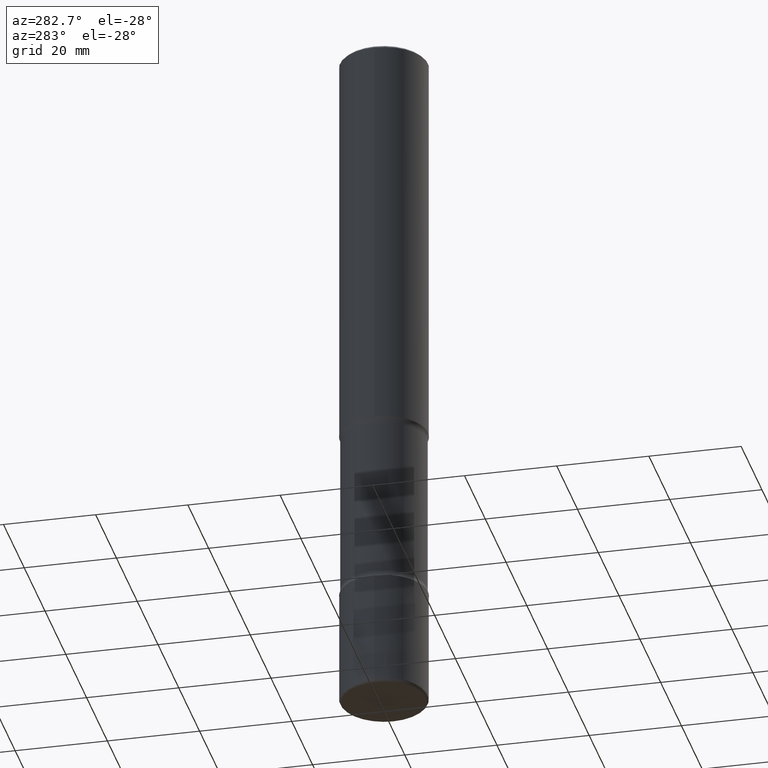
[diagram: clean part render]
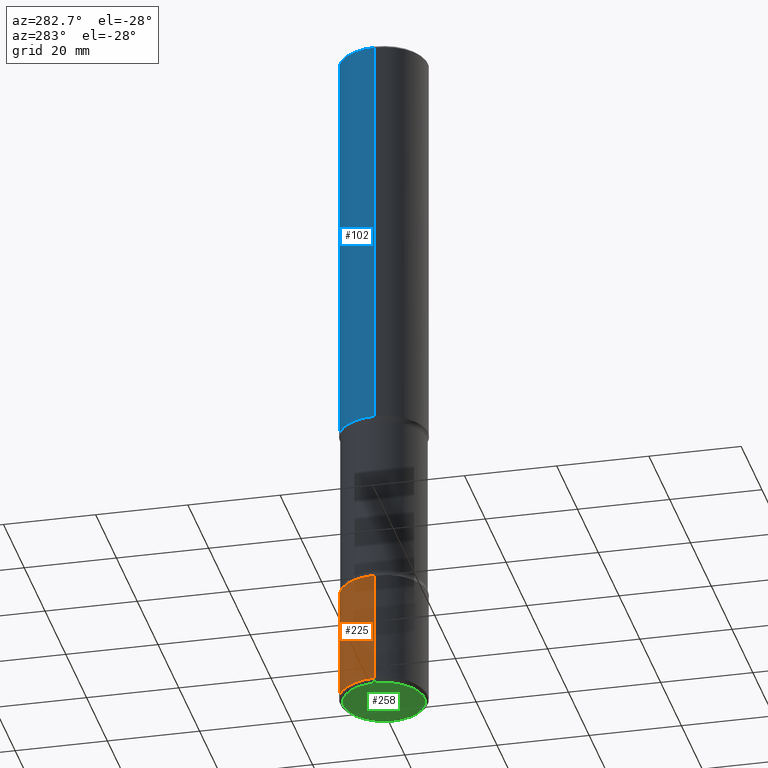
[diagram: same view with three faces highlighted in distinct colors, each labeled with its STEP entity id]
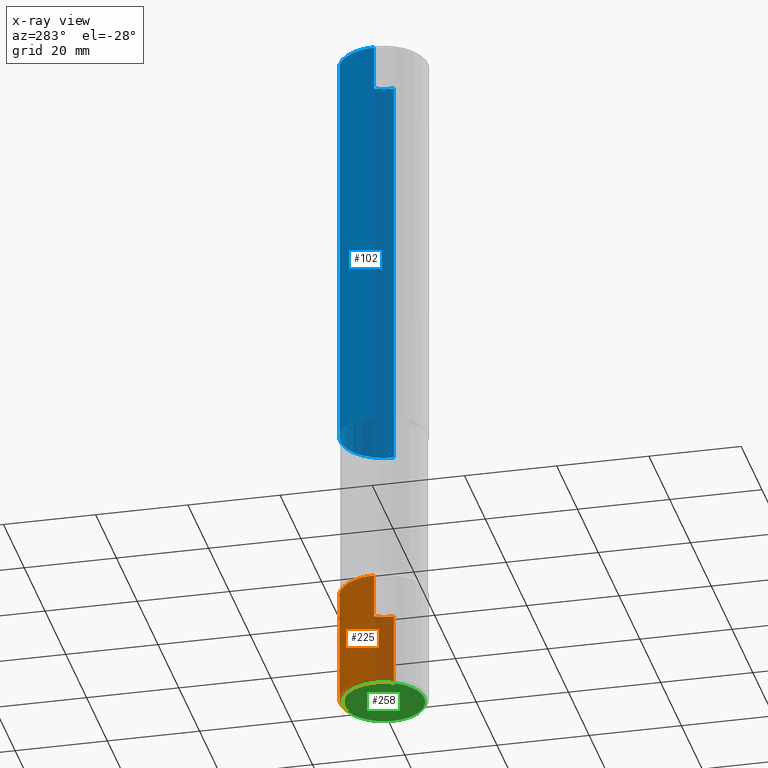
[diagram: x-ray of the same camera — body ghosted, the three highlighted faces saturated]
A machine part, auxiliary view with three faces highlighted in distinct colors.
The next image is the same camera in x-ray (body ghosted, the three faces saturated) — at least one of them is partly hidden behind the body in this view.
Their STEP definitions:

[orange] entity #225 — the highlighted cylindrical surface (partial cylindrical patch) has radius 9.525 mm, axis along (-0, 0, 1).
#9 = EDGE_CURVE ( 'NONE', #195, #76, #226, .T. ) ;
#23 = AXIS2_PLACEMENT_3D ( 'NONE', #290, #340, #253 ) ;
#76 = VERTEX_POINT ( 'NONE', #269 ) ;
#79 = EDGE_LOOP ( 'NONE', ( #299, #257, #553, #341 ) ) ;
#84 = CARTESIAN_POINT ( 'NONE',  ( -0.3750000000000002220, 2.664535259100377275E-15, -1.844600658845590719E-29 ) ) ;
#106 = CARTESIAN_POINT ( 'NONE',  ( 0.3750000000000002220, -2.007601769834807990E-14, -5.000000000000000000 ) ) ;
#136 = CIRCLE ( 'NONE', #23, 0.3750000000000001665 ) ;
#142 = VECTOR ( 'NONE', #159, 39.37007874015748143 ) ;
#146 = DIRECTION ( 'NONE',  ( -2.445468806185136597E-29, 3.491481338843145583E-15, 1.000000000000000000 ) ) ;
#159 = DIRECTION ( 'NONE',  ( -2.445468806185136877E-29, 3.491481338843145188E-15, 1.000000000000000000 ) ) ;
#166 = CARTESIAN_POINT ( 'NONE',  ( 0.3750000000000002776, -2.346275459702592935E-14, -5.969999999999999751 ) ) ;
#195 = VERTEX_POINT ( 'NONE', #239 ) ;
#211 = VERTEX_POINT ( 'NONE', #106 ) ;
#225 = ADVANCED_FACE ( 'NONE', ( #280 ), #286, .T. ) ;
#226 = LINE ( 'NONE', #84, #421 ) ;
#239 = CARTESIAN_POINT ( 'NONE',  ( -0.3750000000000002776, -1.817960833379319733E-14, -5.969999999999999751 ) ) ;
#244 = DIRECTION ( 'NONE',  ( -2.445468806185136597E-29, 3.491481338843145583E-15, 1.000000000000000000 ) ) ;
#253 = DIRECTION ( 'NONE',  ( 1.000000000000000000, -6.982962677686269866E-15, 0.000000000000000000 ) ) ;
#257 = ORIENTED_EDGE ( 'NONE', *, *, #9, .T. ) ;
#269 = CARTESIAN_POINT ( 'NONE',  ( -0.3750000000000002220, -1.648623988445427734E-14, -5.000000000000000000 ) ) ;
#280 = FACE_OUTER_BOUND ( 'NONE', #79, .T. ) ;
#286 = CYLINDRICAL_SURFACE ( 'NONE', #343, 0.3750000000000002220 ) ;
#290 = CARTESIAN_POINT ( 'NONE',  ( 1.459944877292526494E-28, -2.084414359289357934E-14, -5.969999999999999751 ) ) ;
#299 = ORIENTED_EDGE ( 'NONE', *, *, #350, .T. ) ;
#340 = DIRECTION ( 'NONE',  ( -2.445468806185136597E-29, 3.491481338843145583E-15, 1.000000000000000000 ) ) ;
#341 = ORIENTED_EDGE ( 'NONE', *, *, #346, .F. ) ;
#343 = AXIS2_PLACEMENT_3D ( 'NONE', #397, #244, #442 ) ;
#346 = EDGE_CURVE ( 'NONE', #395, #211, #544, .T. ) ;
#350 = EDGE_CURVE ( 'NONE', #395, #195, #136, .T. ) ;
#395 = VERTEX_POINT ( 'NONE', #166 ) ;
#397 = CARTESIAN_POINT ( 'NONE',  ( 0.000000000000000000, 0.000000000000000000, 0.000000000000000000 ) ) ;
#419 = CARTESIAN_POINT ( 'NONE',  ( 0.3750000000000002220, -2.618611004132351594E-15, 1.828566290923477043E-29 ) ) ;
#421 = VECTOR ( 'NONE', #474, 39.37007874015748143 ) ;
#442 = DIRECTION ( 'NONE',  ( 1.000000000000000000, -6.982962677686266711E-15, 4.876176775795935793E-29 ) ) ;
#468 = EDGE_CURVE ( 'NONE', #211, #76, #538, .T. ) ;
#474 = DIRECTION ( 'NONE',  ( -2.445468806185136877E-29, 3.491481338843145188E-15, 1.000000000000000000 ) ) ;
#480 = CARTESIAN_POINT ( 'NONE',  ( 1.222734403092568523E-28, -1.745740669421572989E-14, -5.000000000000000000 ) ) ;
#494 = DIRECTION ( 'NONE',  ( 1.000000000000000000, -6.982962677686263555E-15, 0.000000000000000000 ) ) ;
#528 = AXIS2_PLACEMENT_3D ( 'NONE', #480, #146, #494 ) ;
#538 = CIRCLE ( 'NONE', #528, 0.3750000000000002220 ) ;
#544 = LINE ( 'NONE', #419, #142 ) ;
#553 = ORIENTED_EDGE ( 'NONE', *, *, #468, .F. ) ;

[blue] entity #102 — the highlighted cylindrical surface (partial cylindrical patch) has radius 9.525 mm, axis along (-0, 0, 1).
#6 = CARTESIAN_POINT ( 'NONE',  ( 0.3750000000000007772, -2.642516375941192367E-15, -0.02000000000000000042 ) ) ;
#14 = ORIENTED_EDGE ( 'NONE', *, *, #276, .F. ) ;
#16 = DIRECTION ( 'NONE',  ( -2.445468806185136597E-29, 3.491481338843145583E-15, 1.000000000000000000 ) ) ;
#20 = DIRECTION ( 'NONE',  ( 1.000000000000000000, -6.982962677686265922E-15, 0.000000000000000000 ) ) ;
#40 = VECTOR ( 'NONE', #505, 39.37007874015748143 ) ;
#41 = CARTESIAN_POINT ( 'NONE',  ( -0.3750000000000009437, -3.480471897263552734E-15, -3.500000000000000444 ) ) ;
#46 = CIRCLE ( 'NONE', #368, 0.3750000000000009437 ) ;
#71 = VERTEX_POINT ( 'NONE', #6 ) ;
#87 = DIRECTION ( 'NONE',  ( 1.000000000000000000, -6.982962677686266711E-15, 4.876176775795935232E-29 ) ) ;
#102 = ADVANCED_FACE ( 'NONE', ( #174 ), #389, .T. ) ;
#110 = ORIENTED_EDGE ( 'NONE', *, *, #329, .T. ) ;
#112 = CARTESIAN_POINT ( 'NONE',  ( 4.890937612370273159E-31, -6.982962677686291609E-17, -0.02000000000000000042 ) ) ;
#125 = VERTEX_POINT ( 'NONE', #41 ) ;
#148 = CARTESIAN_POINT ( 'NONE',  ( -0.3750000000000007772, 2.548781377355492635E-15, -0.02000000000000000042 ) ) ;
#163 = AXIS2_PLACEMENT_3D ( 'NONE', #514, #469, #87 ) ;
#174 = FACE_OUTER_BOUND ( 'NONE', #406, .T. ) ;
#184 = DIRECTION ( 'NONE',  ( -2.445468806185136877E-29, 3.491481338843145188E-15, 1.000000000000000000 ) ) ;
#202 = ORIENTED_EDGE ( 'NONE', *, *, #305, .F. ) ;
#207 = CARTESIAN_POINT ( 'NONE',  ( -0.3750000000000008327, 2.664535259100381613E-15, -1.844600658845593802E-29 ) ) ;
#228 = CARTESIAN_POINT ( 'NONE',  ( 0.3750000000000008327, -2.618611004132355933E-15, 1.828566290923479846E-29 ) ) ;
#231 = DIRECTION ( 'NONE',  ( -2.445468806185136597E-29, 3.491481338843145583E-15, 1.000000000000000000 ) ) ;
#276 = EDGE_CURVE ( 'NONE', #338, #71, #526, .T. ) ;
#305 = EDGE_CURVE ( 'NONE', #71, #460, #462, .T. ) ;
#329 = EDGE_CURVE ( 'NONE', #338, #125, #46, .T. ) ;
#338 = VERTEX_POINT ( 'NONE', #354 ) ;
#354 = CARTESIAN_POINT ( 'NONE',  ( 0.3750000000000009437, -1.483879569008336725E-14, -3.500000000000000444 ) ) ;
#368 = AXIS2_PLACEMENT_3D ( 'NONE', #405, #16, #20 ) ;
#378 = AXIS2_PLACEMENT_3D ( 'NONE', #112, #231, #448 ) ;
#388 = EDGE_CURVE ( 'NONE', #125, #460, #547, .T. ) ;
#389 = CYLINDRICAL_SURFACE ( 'NONE', #163, 0.3750000000000008327 ) ;
#391 = VECTOR ( 'NONE', #184, 39.37007874015748143 ) ;
#405 = CARTESIAN_POINT ( 'NONE',  ( 8.559140821647978089E-29, -1.222018468595101092E-14, -3.500000000000000444 ) ) ;
#406 = EDGE_LOOP ( 'NONE', ( #110, #449, #202, #14 ) ) ;
#448 = DIRECTION ( 'NONE',  ( 1.000000000000000000, -6.982962677686266711E-15, 0.000000000000000000 ) ) ;
#449 = ORIENTED_EDGE ( 'NONE', *, *, #388, .T. ) ;
#460 = VERTEX_POINT ( 'NONE', #148 ) ;
#462 = CIRCLE ( 'NONE', #378, 0.3750000000000007772 ) ;
#469 = DIRECTION ( 'NONE',  ( -2.445468806185136597E-29, 3.491481338843145583E-15, 1.000000000000000000 ) ) ;
#505 = DIRECTION ( 'NONE',  ( -2.445468806185136877E-29, 3.491481338843145188E-15, 1.000000000000000000 ) ) ;
#514 = CARTESIAN_POINT ( 'NONE',  ( 0.000000000000000000, 0.000000000000000000, 0.000000000000000000 ) ) ;
#526 = LINE ( 'NONE', #228, #391 ) ;
#547 = LINE ( 'NONE', #207, #40 ) ;

[green] entity #258 — the highlighted planar face has unit normal (0, -0, -1).
#7 = DIRECTION ( 'NONE',  ( -1.000000000000000000, 6.982962677686265922E-15, -4.876176775795935793E-29 ) ) ;
#11 = DIRECTION ( 'NONE',  ( 2.438088387897960049E-29, -3.491481338843145188E-15, -1.000000000000000000 ) ) ;
#73 = AXIS2_PLACEMENT_3D ( 'NONE', #158, #115, #452 ) ;
#108 = DIRECTION ( 'NONE',  ( 1.000000000000000000, -6.982962677686267499E-15, 0.000000000000000000 ) ) ;
#115 = DIRECTION ( 'NONE',  ( -2.445468806185136597E-29, 3.491481338843145583E-15, 1.000000000000000000 ) ) ;
#158 = CARTESIAN_POINT ( 'NONE',  ( 1.467281283711081958E-28, -2.094888803305887271E-14, -6.000000000000000888 ) ) ;
#172 = AXIS2_PLACEMENT_3D ( 'NONE', #312, #11, #7 ) ;
#175 = EDGE_CURVE ( 'NONE', #192, #410, #326, .T. ) ;
#190 = CARTESIAN_POINT ( 'NONE',  ( 1.467281283711081958E-28, -2.094888803305887271E-14, -6.000000000000000888 ) ) ;
#192 = VERTEX_POINT ( 'NONE', #531 ) ;
#234 = ORIENTED_EDGE ( 'NONE', *, *, #175, .F. ) ;
#236 = FACE_OUTER_BOUND ( 'NONE', #425, .T. ) ;
#258 = ADVANCED_FACE ( 'NONE', ( #236 ), #402, .T. ) ;
#312 = CARTESIAN_POINT ( 'NONE',  ( 1.467281283711081958E-28, -2.094888803305887271E-14, -6.000000000000000888 ) ) ;
#316 = DIRECTION ( 'NONE',  ( -2.445468806185136597E-29, 3.491481338843145583E-15, 1.000000000000000000 ) ) ;
#326 = CIRCLE ( 'NONE', #470, 0.3450000000000003064 ) ;
#401 = CIRCLE ( 'NONE', #73, 0.3450000000000003064 ) ;
#402 = PLANE ( 'NONE',  #172 ) ;
#410 = VERTEX_POINT ( 'NONE', #503 ) ;
#425 = EDGE_LOOP ( 'NONE', ( #234, #440 ) ) ;
#435 = EDGE_CURVE ( 'NONE', #410, #192, #401, .T. ) ;
#440 = ORIENTED_EDGE ( 'NONE', *, *, #435, .F. ) ;
#452 = DIRECTION ( 'NONE',  ( 1.000000000000000000, -6.982962677686267499E-15, 0.000000000000000000 ) ) ;
#470 = AXIS2_PLACEMENT_3D ( 'NONE', #190, #316, #108 ) ;
#503 = CARTESIAN_POINT ( 'NONE',  ( -0.3450000000000003064, -1.833856196423986308E-14, -6.000000000000000888 ) ) ;
#531 = CARTESIAN_POINT ( 'NONE',  ( 0.3450000000000003064, -2.335801015686063914E-14, -6.000000000000000888 ) ) ;